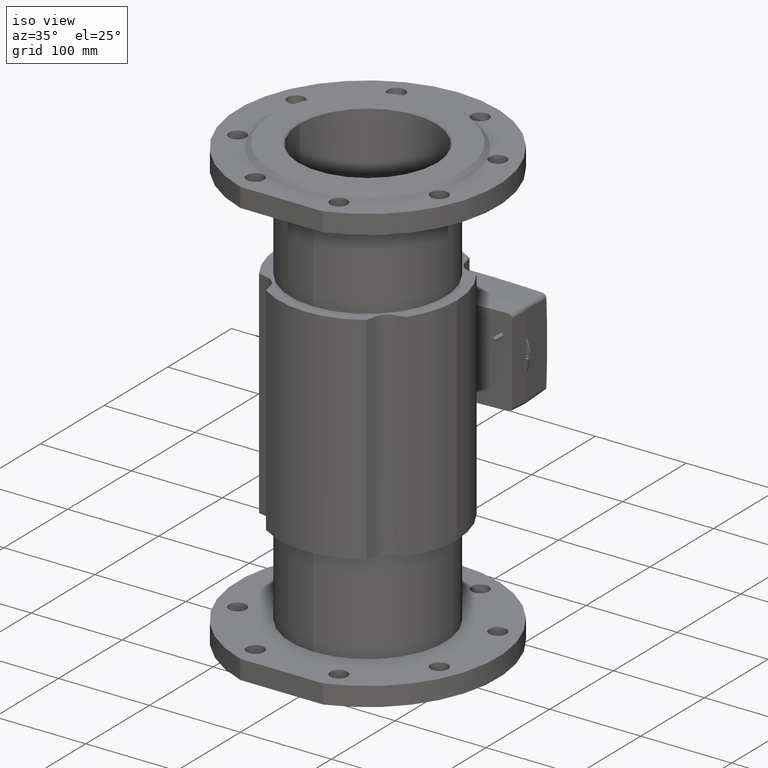
[diagram: clean part render]
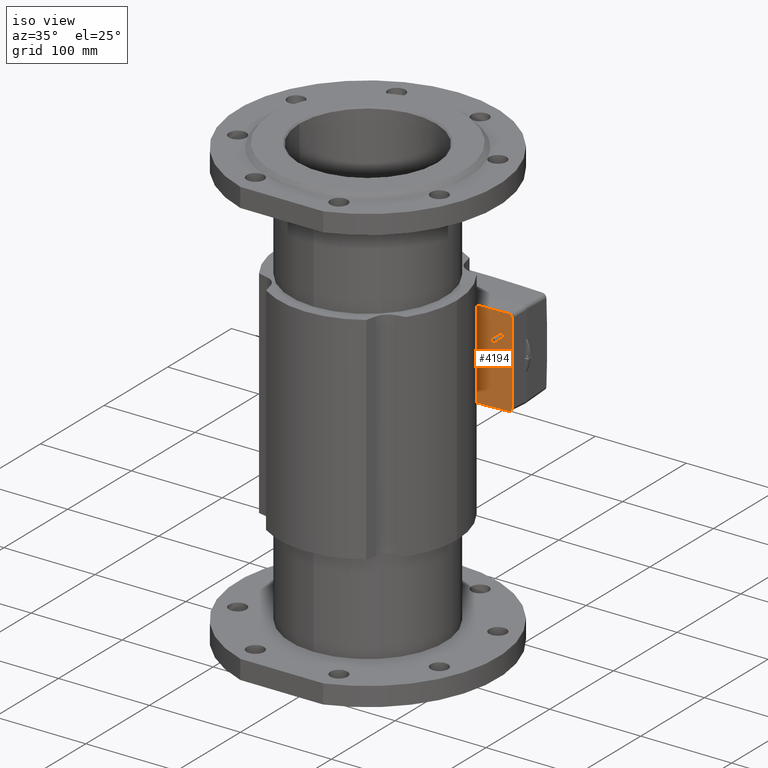
[diagram: same view with one face highlighted and labeled with its STEP entity id]
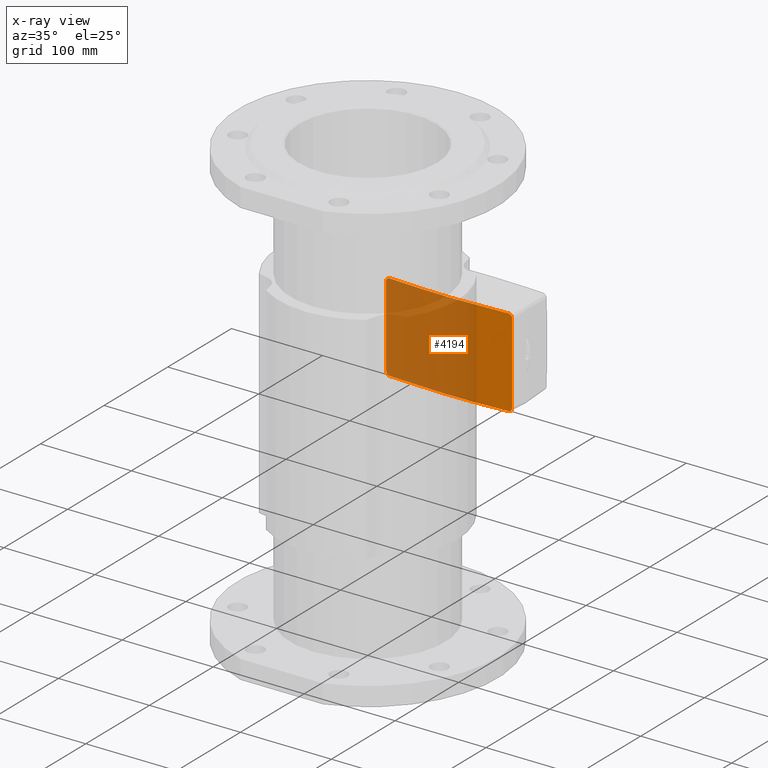
[diagram: x-ray of the same camera — body ghosted, the highlighted face saturated]
A machine part, iso view. The second image highlights one B-rep face of the part: STEP entity #4194.
The next image is the same camera in x-ray: the body ghosted, the highlighted face saturated — about 72% of this face is hidden behind the body in this view.
In plain terms, the highlighted cylindrical surface (partial cylindrical patch) has radius 875 mm, axis along (-0, -0, -1).
Its self-contained STEP definition (entity closure, byte-faithful):
#24 = LINE ( 'NONE', #4648, #5665 ) ;
#162 = CARTESIAN_POINT ( 'NONE',  ( 69.24920345592751403, 63.00000000000001421, -44.54937908319803341 ) ) ;
#255 = CARTESIAN_POINT ( 'NONE',  ( -67.68344822128948124, 62.87707996386145481, 47.72579843991431403 ) ) ;
#282 = CARTESIAN_POINT ( 'NONE',  ( -68.25887175663184792, 62.92192261951876020, 47.19085840137987020 ) ) ;
#291 = CARTESIAN_POINT ( 'NONE',  ( 65.25131647000350199, 62.69182026244883588, -48.53619495636328196 ) ) ;
#325 = CARTESIAN_POINT ( 'NONE',  ( 65.77494688336823003, 62.73109774176069209, 48.51060724216534936 ) ) ;
#329 = CARTESIAN_POINT ( 'NONE',  ( -69.12152076908363085, 62.98987105928470243, -45.58372040201231101 ) ) ;
#346 = CARTESIAN_POINT ( 'NONE',  ( -68.42466198009589107, 62.93491863446537593, 46.99047678461085553 ) ) ;
#437 = CARTESIAN_POINT ( 'NONE',  ( -65.25131646997178336, 62.69182026244681083, -48.53619495632863590 ) ) ;
#465 = ORIENTED_EDGE ( 'NONE', *, *, #4866, .T. ) ;
#482 = DIRECTION ( 'NONE',  ( -0.0000000000000000000, -0.0000000000000000000, -1.000000000000000000 ) ) ;
#504 = CARTESIAN_POINT ( 'NONE',  ( 67.68344822131220440, 62.87707996386316012, -47.72579843995305282 ) ) ;
#535 = CARTESIAN_POINT ( 'NONE',  ( 68.84245913132187411, 62.96779782216788135, -46.32264954108480026 ) ) ;
#591 = DIRECTION ( 'NONE',  ( -0.0000000000000000000, -0.0000000000000000000, -1.000000000000000000 ) ) ;
#623 = EDGE_CURVE ( 'NONE', #1519, #3461, #2961, .T. ) ;
#641 = CARTESIAN_POINT ( 'NONE',  ( -43.51902974978828098, 61.32138563090015282, 48.53617843657154651 ) ) ;
#676 = ORIENTED_EDGE ( 'NONE', *, *, #4107, .T. ) ;
#698 = CARTESIAN_POINT ( 'NONE',  ( 69.24920345592751403, 63.00000000000001421, 44.54937908317636897 ) ) ;
#808 = CARTESIAN_POINT ( 'NONE',  ( -69.11964079117099402, 62.98972202956549893, 45.59151067757144915 ) ) ;
#833 = VERTEX_POINT ( 'NONE', #4528 ) ;
#915 = CARTESIAN_POINT ( 'NONE',  ( 67.69041435188228206, 62.87762011541951779, 47.72064451431950971 ) ) ;
#990 = CARTESIAN_POINT ( 'NONE',  ( 67.24916294550199325, 62.84349469790797826, -48.01364544843828241 ) ) ;
#998 = CARTESIAN_POINT ( 'NONE',  ( 21.77339490442798109, 60.50944728500218162, 48.53615641145778170 ) ) ;
#1024 = EDGE_CURVE ( 'NONE', #3059, #833, #2232, .T. ) ;
#1029 = CARTESIAN_POINT ( 'NONE',  ( 65.25131647000350199, 62.69182026244883588, -48.53619495636328196 ) ) ;
#1066 = CARTESIAN_POINT ( 'NONE',  ( -65.25131646995423296, 62.69182026244557449, 48.53619495630681513 ) ) ;
#1087 = B_SPLINE_CURVE_WITH_KNOTS ( 'NONE', 3,
 ( #4798, #2826, #4301, #3421, #3317, #3387, #6346, #5423, #2859, #2293, #5390, #4391, #5834, #4360 ),
 .UNSPECIFIED., .F., .F.,
 ( 4, 2, 2, 2, 2, 2, 4 ),
 ( 0.1917586982518893757, 0.2244074373804117173, 0.2407318069446728881, 0.2570561765089340311, 0.2897049156374563728, 0.3060292852017175713, 0.3223536547659787144 ),
 .UNSPECIFIED. ) ;
#1201 = B_SPLINE_CURVE_WITH_KNOTS ( 'NONE', 3,
 ( #1029, #2118, #6595, #6061, #2054, #4086, #990, #504, #1564, #5082, #2022, #1531, #535, #2549, #3708, #2246, #2683, #162 ),
 .UNSPECIFIED., .F., .F.,
 ( 4, 2, 2, 2, 2, 2, 2, 2, 4 ),
 ( 0.0000000000000000000, 0.0007808764837246023752, 0.001561752967449204750, 0.002342629451173807234, 0.003123505934898409501, 0.003904382418623011768, 0.004685258902347614468, 0.005466135386072216301, 0.006247011869796819002 ),
 .UNSPECIFIED. ) ;
#1260 = B_SPLINE_CURVE_WITH_KNOTS ( 'NONE', 3,
 ( #5920, #5441, #5879, #5375, #1360, #3476, #3339, #5008, #5476, #2371, #915, #3877, #1324, #2875, #3376, #325, #4973, #4477 ),
 .UNSPECIFIED., .F., .F.,
 ( 4, 2, 2, 2, 2, 2, 2, 2, 4 ),
 ( 0.0000000000000000000, 0.0007808745632117755891, 0.001561749126423551178, 0.002342623689635326550, 0.003123498252847102356, 0.003904372816058878162, 0.004685247379270653101, 0.005466121942482428907, 0.006246996505694204713 ),
 .UNSPECIFIED. ) ;
#1324 = CARTESIAN_POINT ( 'NONE',  ( 67.02139302254758491, 62.82596111053354093, 48.13447459124414962 ) ) ;
#1360 = CARTESIAN_POINT ( 'NONE',  ( 69.04446573100729267, 62.98376402537962804, 45.83749142922994224 ) ) ;
#1363 = CARTESIAN_POINT ( 'NONE',  ( -69.24920345592752824, 62.99999999999992895, -44.81341608705689339 ) ) ;
#1445 = ORIENTED_EDGE ( 'NONE', *, *, #623, .F. ) ;
#1497 = CARTESIAN_POINT ( 'NONE',  ( -67.02139302253875996, 62.82596111053288723, -48.13447459123551653 ) ) ;
#1519 = VERTEX_POINT ( 'NONE', #698 ) ;
#1531 = CARTESIAN_POINT ( 'NONE',  ( 68.71751557729822935, 62.95793947894153320, -46.55527883556020896 ) ) ;
#1564 = CARTESIAN_POINT ( 'NONE',  ( 67.88943000658332494, 62.89309302918407951, -47.55796118209841694 ) ) ;
#1870 = CARTESIAN_POINT ( 'NONE',  ( -67.24916294547350049, 62.84349469790586085, 48.01364544839852755 ) ) ;
#2000 = CARTESIAN_POINT ( 'NONE',  ( 65.25131646998563895, 62.69182026244765638, 48.53619495634156067 ) ) ;
#2007 = CARTESIAN_POINT ( 'NONE',  ( -69.24920345592762772, 63.00000000000004263, 44.81344655462562088 ) ) ;
#2010 = ORIENTED_EDGE ( 'NONE', *, *, #4709, .T. ) ;
#2022 = CARTESIAN_POINT ( 'NONE',  ( 68.42466198010863820, 62.93491863446633516, -46.99047678465090172 ) ) ;
#2054 = CARTESIAN_POINT ( 'NONE',  ( 66.53625241586978234, 62.78882706156070981, -48.33422841132178860 ) ) ;
#2072 = EDGE_LOOP ( 'NONE', ( #4793, #2112, #1445, #2010, #5033, #676, #465, #4057 ) ) ;
#2084 = VECTOR ( 'NONE', #482, 1000.000000000000000 ) ;
#2112 = ORIENTED_EDGE ( 'NONE', *, *, #3575, .T. ) ;
#2118 = CARTESIAN_POINT ( 'NONE',  ( 65.51460290091208094, 62.71150912626472262, -48.53619502902117944 ) ) ;
#2232 = B_SPLINE_CURVE_WITH_KNOTS ( 'NONE', 3,
 ( #2000, #3117, #4627, #4695, #998, #3648, #2528, #6139, #3153, #2627, #641, #2658, #3614, #1066 ),
 .UNSPECIFIED., .F., .F.,
 ( 4, 2, 2, 2, 2, 2, 4 ),
 ( 0.1917586982518762473, 0.2244074373803897349, 0.2407318069446464925, 0.2570561765089032225, 0.2897049156374167378, 0.3060292852016734955, 0.3223536547659301976 ),
 .UNSPECIFIED. ) ;
#2246 = CARTESIAN_POINT ( 'NONE',  ( 69.22325102464303370, 62.99793845179772944, -45.07468199003182008 ) ) ;
#2293 = CARTESIAN_POINT ( 'NONE',  ( 38.08255136434428323, 61.06762488490476670, -48.53617229438721381 ) ) ;
#2302 = CARTESIAN_POINT ( 'NONE',  ( -68.71751557729004389, 62.95793947894094345, 46.55527883551768298 ) ) ;
#2344 = CARTESIAN_POINT ( 'NONE',  ( -69.04446573100622686, 62.98376402537947172, -45.83749142921981701 ) ) ;
#2371 = CARTESIAN_POINT ( 'NONE',  ( 67.89172489951727130, 62.89327167385528838, 47.55594847263025571 ) ) ;
#2448 = CARTESIAN_POINT ( 'NONE',  ( 69.24920345592751403, 63.00000000000001421, -44.54937908319803341 ) ) ;
#2528 = CARTESIAN_POINT ( 'NONE',  ( 5.443488639837819498, 60.25543651881148577, 48.53614788798282120 ) ) ;
#2548 = CARTESIAN_POINT ( 'NONE',  ( -67.25339465133518502, 62.84382056238592185, -48.01136380647364632 ) ) ;
#2549 = CARTESIAN_POINT ( 'NONE',  ( 69.04269640464170266, 62.98362402260696058, -45.84234951945621361 ) ) ;
#2627 = CARTESIAN_POINT ( 'NONE',  ( -38.08255136430251753, 61.06762488490309693, 48.53617229414364687 ) ) ;
#2655 = VERTEX_POINT ( 'NONE', #291 ) ;
#2658 = CARTESIAN_POINT ( 'NONE',  ( -54.38913273596320153, 61.93049499197989860, 48.53618901883077541 ) ) ;
#2683 = CARTESIAN_POINT ( 'NONE',  ( 69.24920345592757087, 62.99999999999998579, -44.81344655467989213 ) ) ;
#2826 = CARTESIAN_POINT ( 'NONE',  ( -54.39341862230917712, 61.87985410335046765, -48.53619195984196466 ) ) ;
#2859 = CARTESIAN_POINT ( 'NONE',  ( 21.76883997714200802, 60.45856616731948208, -48.53615577246663548 ) ) ;
#2865 = CARTESIAN_POINT ( 'NONE',  ( -65.77354518517925897, 62.73099288044969768, 48.51060541462690168 ) ) ;
#2875 = CARTESIAN_POINT ( 'NONE',  ( 66.54126580632443222, 62.78920987809856769, 48.33241702179950039 ) ) ;
#2931 = CARTESIAN_POINT ( 'NONE',  ( -67.01976201918019171, 62.82583534612880527, 48.13539900368866142 ) ) ;
#2961 = LINE ( 'NONE', #3463, #2084 ) ;
#2977 = CARTESIAN_POINT ( 'NONE',  ( -67.69041435187577349, 62.87762011541901330, -47.72064451431144505 ) ) ;
#3059 = VERTEX_POINT ( 'NONE', #5998 ) ;
#3114 = AXIS2_PLACEMENT_3D ( 'NONE', #4004, #6110, #4964 ) ;
#3117 = CARTESIAN_POINT ( 'NONE',  ( 54.39341862232600278, 61.87985410335149794, 48.53619195989168134 ) ) ;
#3153 = CARTESIAN_POINT ( 'NONE',  ( -21.76883997710465124, 60.45856616731873601, 48.53615577221473387 ) ) ;
#3292 = CARTESIAN_POINT ( 'NONE',  ( -66.28307611385898213, 62.76955249913248025, 48.41021215105917719 ) ) ;
#3317 = CARTESIAN_POINT ( 'NONE',  ( -21.77339490440260406, 60.50944728500161318, -48.53615641151068871 ) ) ;
#3324 = CARTESIAN_POINT ( 'NONE',  ( -66.53625241583296201, 62.78882706155793159, 48.33422841127796943 ) ) ;
#3339 = CARTESIAN_POINT ( 'NONE',  ( 68.72041004923005403, 62.95816768824051479, 46.55012461832591697 ) ) ;
#3376 = CARTESIAN_POINT ( 'NONE',  ( 66.28992487946804602, 62.77007202530238317, 48.40858023907049557 ) ) ;
#3387 = CARTESIAN_POINT ( 'NONE',  ( -10.88902571888103665, 60.30626340937075724, -48.53614971242367915 ) ) ;
#3398 = VERTEX_POINT ( 'NONE', #437 ) ;
#3421 = CARTESIAN_POINT ( 'NONE',  ( -27.21337260873658792, 60.66179278057757074, -48.53616128590937251 ) ) ;
#3461 = VERTEX_POINT ( 'NONE', #2448 ) ;
#3463 = CARTESIAN_POINT ( 'NONE',  ( 69.24920345592751403, 63.00000000000001421, 60.00000000000000000 ) ) ;
#3464 = FACE_OUTER_BOUND ( 'NONE', #2072, .T. ) ;
#3476 = CARTESIAN_POINT ( 'NONE',  ( 68.84343268108590053, 62.96787461091035709, 46.32092010641455460 ) ) ;
#3496 = CARTESIAN_POINT ( 'NONE',  ( -69.24920345592711612, 62.99999999999994316, 44.54937908314170159 ) ) ;
#3530 = CARTESIAN_POINT ( 'NONE',  ( -69.24920345592711612, 62.99999999999994316, -44.54937908316347261 ) ) ;
#3575 = EDGE_CURVE ( 'NONE', #2655, #3461, #1201, .T. ) ;
#3614 = CARTESIAN_POINT ( 'NONE',  ( -59.82331386128574735, 62.28590794943990971, 48.53619345830053078 ) ) ;
#3648 = CARTESIAN_POINT ( 'NONE',  ( 10.88902571890938553, 60.30626340937099883, 48.53614971231695563 ) ) ;
#3708 = CARTESIAN_POINT ( 'NONE',  ( 69.11964079117278459, 62.98972202956572630, -45.59151067762041265 ) ) ;
#3800 = VERTEX_POINT ( 'NONE', #4445 ) ;
#3877 = CARTESIAN_POINT ( 'NONE',  ( 67.25339465134345573, 62.84382056238653291, 48.01136380648199520 ) ) ;
#3879 = B_SPLINE_CURVE_WITH_KNOTS ( 'NONE', 3,
 ( #5462, #5839, #2865, #3292, #3324, #2931, #1870, #255, #4835, #282, #346, #2302, #5366, #4335, #808, #4867, #2007, #3496 ),
 .UNSPECIFIED., .F., .F.,
 ( 4, 2, 2, 2, 2, 2, 2, 2, 4 ),
 ( 5.594315114139762021E-17, 0.0007808764837308217925, 0.001561752967461587640, 0.002342629451192353596, 0.003123505934923119336, 0.003904382418653885075, 0.004685258902384650814, 0.005466135386115416120, 0.006247011869846182293 ),
 .UNSPECIFIED. ) ;
#4004 = CARTESIAN_POINT ( 'NONE',  ( -1.110223024625156540E-13, 935.2554372548900119, 60.00000000000000000 ) ) ;
#4057 = ORIENTED_EDGE ( 'NONE', *, *, #5817, .T. ) ;
#4086 = CARTESIAN_POINT ( 'NONE',  ( 67.01976201921155507, 62.82583534613116427, -48.13539900372948921 ) ) ;
#4102 = CYLINDRICAL_SURFACE ( 'NONE', #3114, 874.9999999999998863 ) ;
#4107 = EDGE_CURVE ( 'NONE', #833, #3800, #3879, .T. ) ;
#4194 = ADVANCED_FACE ( 'NONE', ( #3464 ), #4102, .T. ) ;
#4301 = CARTESIAN_POINT ( 'NONE',  ( -43.52669078423814852, 61.27095821433960054, -48.53617780880736632 ) ) ;
#4335 = CARTESIAN_POINT ( 'NONE',  ( -69.04269640463849100, 62.98362402260672610, 45.84234951940985070 ) ) ;
#4339 = B_SPLINE_CURVE_WITH_KNOTS ( 'NONE', 3,
 ( #4879, #1363, #4908, #329, #2344, #6426, #6594, #5586, #4553, #6525, #2977, #2548, #1497, #4519, #5051, #6560, #5513, #5993 ),
 .UNSPECIFIED., .F., .F.,
 ( 4, 2, 2, 2, 2, 2, 2, 2, 4 ),
 ( 7.757919228897729725E-17, 0.0007808745632135537891, 0.001561749126427029949, 0.002342623689640506001, 0.003123498252853982270, 0.003904372816067458538, 0.004685247379280933940, 0.005466121942494410642, 0.006246996505707886477 ),
 .UNSPECIFIED. ) ;
#4360 = CARTESIAN_POINT ( 'NONE',  ( 65.25131647000350199, 62.69182026244883588, -48.53619495636328196 ) ) ;
#4391 = CARTESIAN_POINT ( 'NONE',  ( 54.38913273600954312, 61.93049499198261287, -48.53618901899984195 ) ) ;
#4445 = CARTESIAN_POINT ( 'NONE',  ( -69.24920345592711612, 62.99999999999994316, 44.54937908314170159 ) ) ;
#4477 = CARTESIAN_POINT ( 'NONE',  ( 65.25131646998563895, 62.69182026244765638, 48.53619495634156067 ) ) ;
#4519 = CARTESIAN_POINT ( 'NONE',  ( -66.54126580631398724, 62.78920987809782872, -48.33241702179009280 ) ) ;
#4528 = CARTESIAN_POINT ( 'NONE',  ( -65.25131646995423296, 62.69182026244557449, 48.53619495630681513 ) ) ;
#4553 = CARTESIAN_POINT ( 'NONE',  ( -68.26072227233647993, 62.92206746904760450, -47.18874892439908564 ) ) ;
#4627 = CARTESIAN_POINT ( 'NONE',  ( 43.52669078425766003, 61.27095821434060241, 48.53617780883961785 ) ) ;
#4648 = CARTESIAN_POINT ( 'NONE',  ( -69.24920345592711612, 62.99999999999994316, 60.00000000000000000 ) ) ;
#4695 = CARTESIAN_POINT ( 'NONE',  ( 27.21337260876056519, 60.66179278057827418, 48.53616128588193135 ) ) ;
#4709 = EDGE_CURVE ( 'NONE', #1519, #3059, #1260, .T. ) ;
#4793 = ORIENTED_EDGE ( 'NONE', *, *, #5448, .T. ) ;
#4798 = CARTESIAN_POINT ( 'NONE',  ( -65.25131646997178336, 62.69182026244681083, -48.53619495632863590 ) ) ;
#4835 = CARTESIAN_POINT ( 'NONE',  ( -67.88943000656323079, 62.89309302918255895, 47.55796118205969947 ) ) ;
#4866 = EDGE_CURVE ( 'NONE', #3800, #5295, #24, .T. ) ;
#4867 = CARTESIAN_POINT ( 'NONE',  ( -69.22325102464270685, 62.99793845179761576, 45.07468198997949571 ) ) ;
#4879 = CARTESIAN_POINT ( 'NONE',  ( -69.24920345592711612, 62.99999999999994316, -44.54937908316347261 ) ) ;
#4908 = CARTESIAN_POINT ( 'NONE',  ( -69.22325959607016443, 62.99793918745247367, -45.07302214924734329 ) ) ;
#4964 = DIRECTION ( 'NONE',  ( -1.000000000000000000, 0.0000000000000000000, 0.0000000000000000000 ) ) ;
#4973 = CARTESIAN_POINT ( 'NONE',  ( 65.51458003975872657, 62.71150741668128603, 48.53619502899432803 ) ) ;
#5008 = CARTESIAN_POINT ( 'NONE',  ( 68.42975394831509561, 62.93531824734392899, 46.98373958836967290 ) ) ;
#5033 = ORIENTED_EDGE ( 'NONE', *, *, #1024, .T. ) ;
#5051 = CARTESIAN_POINT ( 'NONE',  ( -66.28992487945671996, 62.77007202530142393, -48.40858023906061902 ) ) ;
#5082 = CARTESIAN_POINT ( 'NONE',  ( 68.25887175664686879, 62.92192261951991128, -47.19085840141903532 ) ) ;
#5295 = VERTEX_POINT ( 'NONE', #3530 ) ;
#5366 = CARTESIAN_POINT ( 'NONE',  ( -68.84245913131563555, 62.96779782216738397, 46.32264954104152821 ) ) ;
#5375 = CARTESIAN_POINT ( 'NONE',  ( 69.12152076908435561, 62.98987105928487296, 45.58372040202294073 ) ) ;
#5390 = CARTESIAN_POINT ( 'NONE',  ( 43.51902974983170225, 61.32138563090214944, -48.53617843680089550 ) ) ;
#5423 = CARTESIAN_POINT ( 'NONE',  ( 10.88733223324477706, 60.25543872707176263, -48.53614788823333015 ) ) ;
#5441 = CARTESIAN_POINT ( 'NONE',  ( 69.24920345592752824, 63.00000000000000000, 44.81341608706921420 ) ) ;
#5448 = EDGE_CURVE ( 'NONE', #3398, #2655, #1087, .T. ) ;
#5462 = CARTESIAN_POINT ( 'NONE',  ( -65.25131646995423296, 62.69182026244557449, 48.53619495630681513 ) ) ;
#5476 = CARTESIAN_POINT ( 'NONE',  ( 68.26072227234051581, 62.92206746904789583, 47.18874892440698687 ) ) ;
#5513 = CARTESIAN_POINT ( 'NONE',  ( -65.51458003974535416, 62.71150741668020601, -48.53619502898225591 ) ) ;
#5586 = CARTESIAN_POINT ( 'NONE',  ( -68.42975394831145763, 62.93531824734366609, -46.98373958836143771 ) ) ;
#5665 = VECTOR ( 'NONE', #591, 1000.000000000000000 ) ;
#5817 = EDGE_CURVE ( 'NONE', #5295, #3398, #4339, .T. ) ;
#5834 = CARTESIAN_POINT ( 'NONE',  ( 59.82331386133354556, 62.28590794944285847, -48.53619345842354704 ) ) ;
#5839 = CARTESIAN_POINT ( 'NONE',  ( -65.51460290086484406, 62.71150912626114149, 48.53619502896791715 ) ) ;
#5879 = CARTESIAN_POINT ( 'NONE',  ( 69.22325959607043444, 62.99793918745257315, 45.07302214925904593 ) ) ;
#5920 = CARTESIAN_POINT ( 'NONE',  ( 69.24920345592751403, 63.00000000000001421, 44.54937908317636897 ) ) ;
#5993 = CARTESIAN_POINT ( 'NONE',  ( -65.25131646997178336, 62.69182026244681083, -48.53619495632863590 ) ) ;
#5998 = CARTESIAN_POINT ( 'NONE',  ( 65.25131646998563895, 62.69182026244765638, 48.53619495634156067 ) ) ;
#6061 = CARTESIAN_POINT ( 'NONE',  ( 66.28307611389865883, 62.76955249913552848, -48.41021215110482956 ) ) ;
#6110 = DIRECTION ( 'NONE',  ( -0.0000000000000000000, -0.0000000000000000000, -1.000000000000000000 ) ) ;
#6139 = CARTESIAN_POINT ( 'NONE',  ( -10.88733223320994270, 60.25543872707150683, 48.53614788802154578 ) ) ;
#6346 = CARTESIAN_POINT ( 'NONE',  ( -5.443488639807389617, 60.25543651881112339, -48.53614788811789538 ) ) ;
#6426 = CARTESIAN_POINT ( 'NONE',  ( -68.84343268108401048, 62.96787461091010840, -46.32092010640528201 ) ) ;
#6525 = CARTESIAN_POINT ( 'NONE',  ( -67.89172489951178591, 62.89327167385490469, -47.55594847262248237 ) ) ;
#6560 = CARTESIAN_POINT ( 'NONE',  ( -65.77494688335561079, 62.73109774175966891, -48.51060724215409437 ) ) ;
#6594 = CARTESIAN_POINT ( 'NONE',  ( -68.72041004922765239, 62.95816768824033716, -46.55012461831703519 ) ) ;
#6595 = CARTESIAN_POINT ( 'NONE',  ( 65.77354518522405158, 62.73099288045311539, -48.51060541467729337 ) ) ;